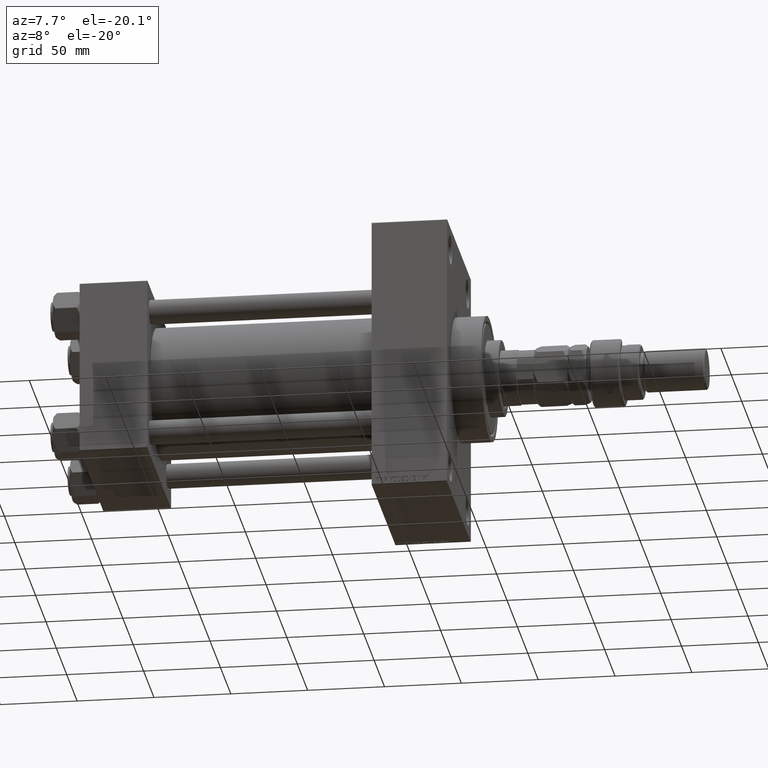
[diagram: clean part render]
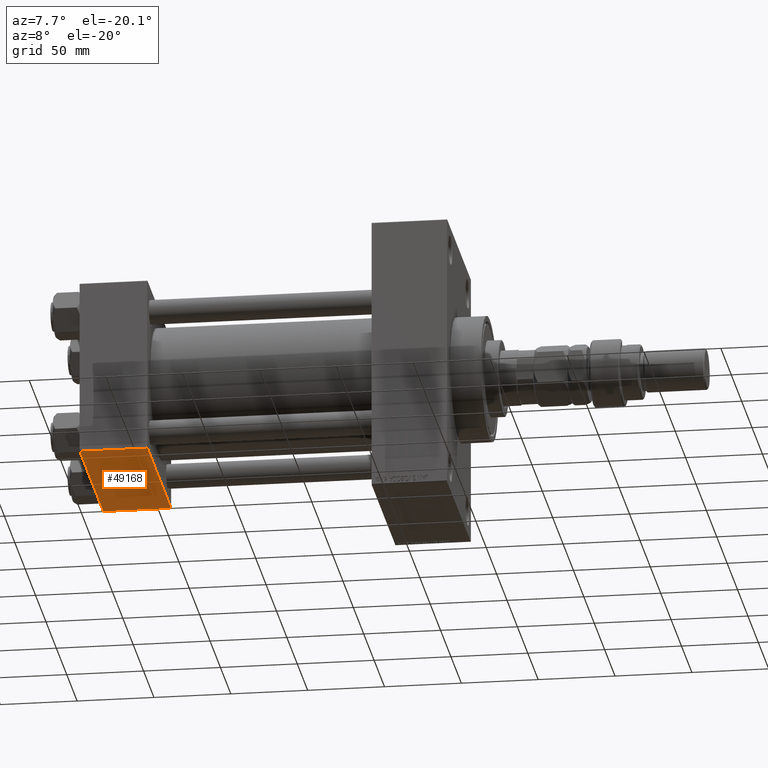
[diagram: same view with one face highlighted and labeled with its STEP entity id]
A machine part, auxiliary view. The second image highlights one B-rep face of the part: STEP entity #49168.
In plain terms, the highlighted planar face has unit normal (0, 0, -1).
Its self-contained STEP definition (entity closure, byte-faithful):
#2440 = CARTESIAN_POINT ( 'NONE',  ( 44.00000000000000000, 57.00000000000002132, -57.49999999999999289 ) ) ;
#2840 = CARTESIAN_POINT ( 'NONE',  ( 44.00000000000000000, -57.00000000000000711, -57.50000000000000711 ) ) ;
#6567 = EDGE_CURVE ( 'NONE', #33555, #12637, #48638, .T. ) ;
#7327 = CARTESIAN_POINT ( 'NONE',  ( 0.000000000000000000, 57.00000000000002132, -57.49999999999999289 ) ) ;
#7969 = ORIENTED_EDGE ( 'NONE', *, *, #10696, .F. ) ;
#10209 = ORIENTED_EDGE ( 'NONE', *, *, #6567, .T. ) ;
#10696 = EDGE_CURVE ( 'NONE', #33555, #35127, #25125, .T. ) ;
#11751 = LINE ( 'NONE', #39227, #41962 ) ;
#12637 = VERTEX_POINT ( 'NONE', #23894 ) ;
#14051 = CARTESIAN_POINT ( 'NONE',  ( 0.000000000000000000, 57.49999999999999289, -57.49999999999999289 ) ) ;
#14936 = CARTESIAN_POINT ( 'NONE',  ( 0.000000000000000000, -57.00000000000000711, -57.50000000000000711 ) ) ;
#18758 = VECTOR ( 'NONE', #40696, 1000.000000000000000 ) ;
#20890 = ORIENTED_EDGE ( 'NONE', *, *, #40486, .T. ) ;
#22504 = VERTEX_POINT ( 'NONE', #2840 ) ;
#22866 = EDGE_CURVE ( 'NONE', #12637, #22504, #11751, .T. ) ;
#23615 = VECTOR ( 'NONE', #30620, 1000.000000000000000 ) ;
#23749 = VECTOR ( 'NONE', #40759, 1000.000000000000000 ) ;
#23894 = CARTESIAN_POINT ( 'NONE',  ( 44.00000000000000000, 57.00000000000002132, -57.49999999999999289 ) ) ;
#25125 = LINE ( 'NONE', #14051, #23749 ) ;
#25914 = FACE_OUTER_BOUND ( 'NONE', #30897, .T. ) ;
#27434 = DIRECTION ( 'NONE',  ( 0.000000000000000000, -1.000000000000000000, -1.206764157201257045E-16 ) ) ;
#29079 = AXIS2_PLACEMENT_3D ( 'NONE', #34647, #34388, #46166 ) ;
#30620 = DIRECTION ( 'NONE',  ( -1.000000000000000000, 0.000000000000000000, 0.000000000000000000 ) ) ;
#30897 = EDGE_LOOP ( 'NONE', ( #7969, #10209, #46842, #20890 ) ) ;
#33555 = VERTEX_POINT ( 'NONE', #7327 ) ;
#34388 = DIRECTION ( 'NONE',  ( 0.000000000000000000, 1.206764157201257045E-16, -1.000000000000000000 ) ) ;
#34647 = CARTESIAN_POINT ( 'NONE',  ( 44.00000000000000000, 57.49999999999999289, -57.49999999999999289 ) ) ;
#35127 = VERTEX_POINT ( 'NONE', #37265 ) ;
#37265 = CARTESIAN_POINT ( 'NONE',  ( 0.000000000000000000, -57.00000000000000711, -57.50000000000000711 ) ) ;
#38488 = PLANE ( 'NONE',  #29079 ) ;
#39227 = CARTESIAN_POINT ( 'NONE',  ( 44.00000000000000000, 57.49999999999999289, -57.49999999999999289 ) ) ;
#40486 = EDGE_CURVE ( 'NONE', #22504, #35127, #45460, .T. ) ;
#40696 = DIRECTION ( 'NONE',  ( 1.000000000000000000, 0.000000000000000000, 0.000000000000000000 ) ) ;
#40759 = DIRECTION ( 'NONE',  ( 0.000000000000000000, -1.000000000000000000, -1.206764157201257045E-16 ) ) ;
#41962 = VECTOR ( 'NONE', #27434, 1000.000000000000000 ) ;
#45460 = LINE ( 'NONE', #14936, #23615 ) ;
#46166 = DIRECTION ( 'NONE',  ( 0.000000000000000000, 1.000000000000000000, 1.206764157201257045E-16 ) ) ;
#46842 = ORIENTED_EDGE ( 'NONE', *, *, #22866, .T. ) ;
#48638 = LINE ( 'NONE', #2440, #18758 ) ;
#49168 = ADVANCED_FACE ( 'NONE', ( #25914 ), #38488, .T. ) ;